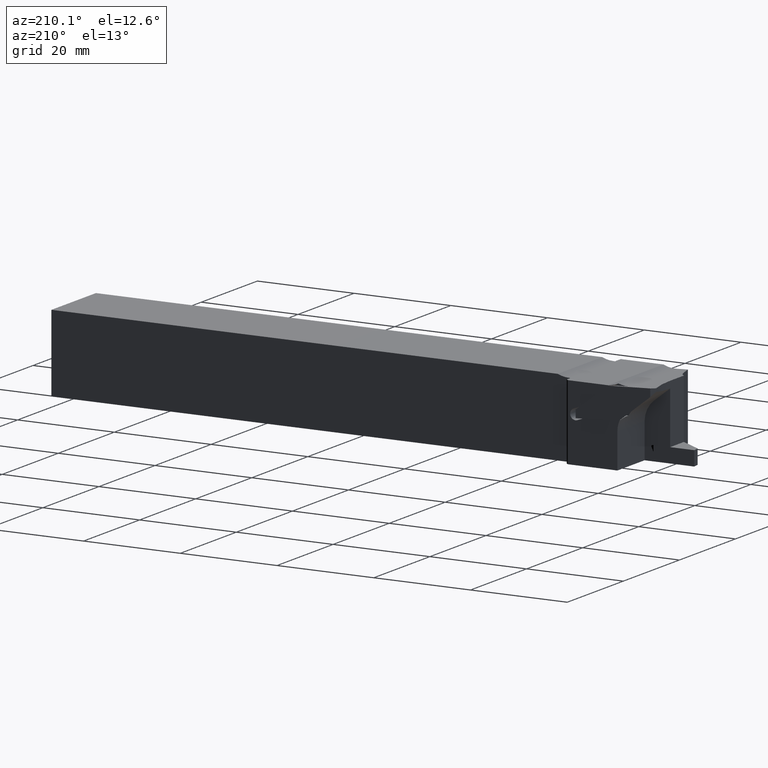
[diagram: clean part render]
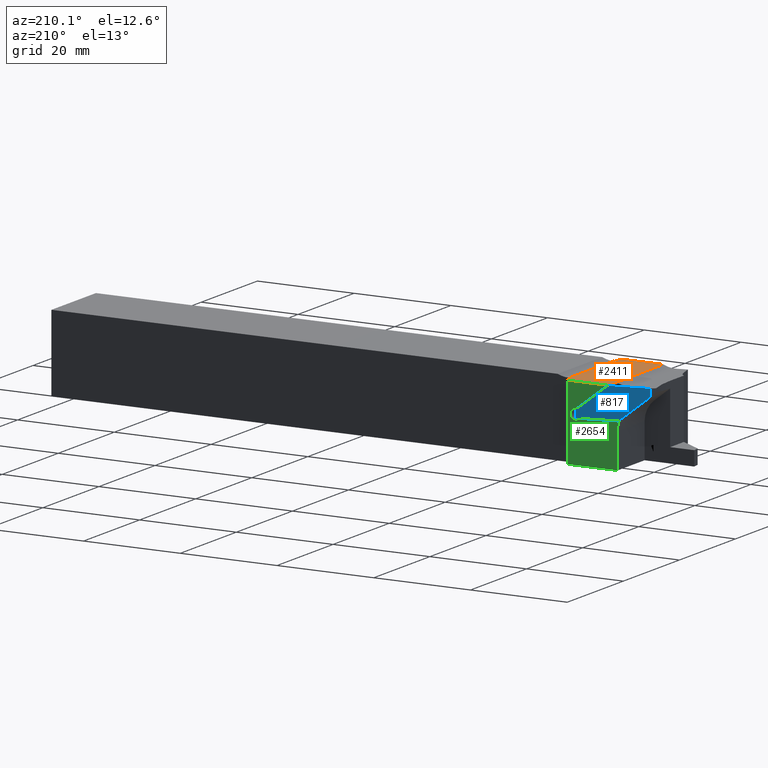
[diagram: same view with three faces highlighted in distinct colors, each labeled with its STEP entity id]
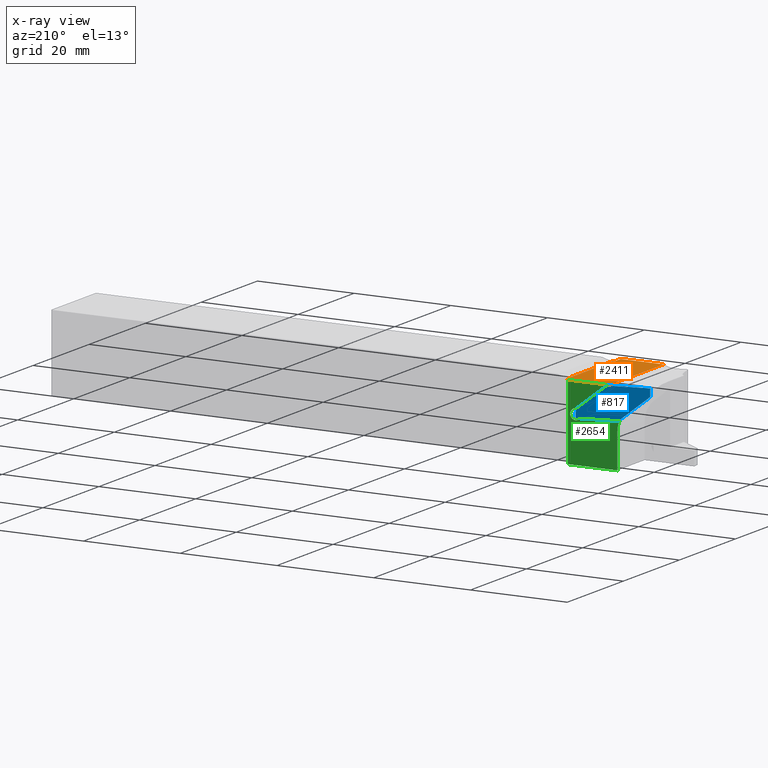
[diagram: x-ray of the same camera — body ghosted, the three highlighted faces saturated]
A machine part, auxiliary view with three faces highlighted in distinct colors.
The next image is the same camera in x-ray (body ghosted, the three faces saturated) — at least one of them is partly hidden behind the body in this view.
Their STEP definitions:

[orange] entity #2411 — the highlighted planar face has unit normal (0, -0, -1).
#4 = VERTEX_POINT ( 'NONE', #1538 ) ;
#45 = CARTESIAN_POINT ( 'NONE',  ( -116.1121971406843200, 9.700000000000013500, 7.471709989437763400 ) ) ;
#49 = CARTESIAN_POINT ( 'NONE',  ( -107.3000000000000100, 9.250000000000001800, 7.471709989437764300 ) ) ;
#77 = ORIENTED_EDGE ( 'NONE', *, *, #2792, .T. ) ;
#90 = CARTESIAN_POINT ( 'NONE',  ( -107.3000000000000100, 9.250000000000001800, 7.471709989437764300 ) ) ;
#114 = LINE ( 'NONE', #477, #788 ) ;
#150 = DIRECTION ( 'NONE',  ( -0.7071067811865474600, 0.7071067811865474600, -6.730729781240127800E-017 ) ) ;
#249 = PLANE ( 'NONE',  #278 ) ;
#278 = AXIS2_PLACEMENT_3D ( 'NONE', #3365, #2456, #596 ) ;
#394 = DIRECTION ( 'NONE',  ( 1.000000000000000000, 0.0000000000000000000, 9.518689341298283600E-017 ) ) ;
#425 = ORIENTED_EDGE ( 'NONE', *, *, #2099, .F. ) ;
#432 = VERTEX_POINT ( 'NONE', #708 ) ;
#477 = CARTESIAN_POINT ( 'NONE',  ( -107.3000000000000100, -7.937500000000000000, 7.471709989437755400 ) ) ;
#595 = CARTESIAN_POINT ( 'NONE',  ( -107.0000000000000100, -10.00000000000000200, 7.471709989437755400 ) ) ;
#596 = DIRECTION ( 'NONE',  ( -1.000000000000000000, 0.0000000000000000000, -9.518689341298283600E-017 ) ) ;
#608 = ORIENTED_EDGE ( 'NONE', *, *, #1548, .T. ) ;
#615 = LINE ( 'NONE', #1325, #2055 ) ;
#708 = CARTESIAN_POINT ( 'NONE',  ( -116.1121971406843200, -10.00000000000000200, 7.471709989437757200 ) ) ;
#726 = DIRECTION ( 'NONE',  ( -1.000000000000000000, 0.0000000000000000000, 3.807475736519313900E-016 ) ) ;
#728 = CARTESIAN_POINT ( 'NONE',  ( -107.0000000000000000, 7.937499999999985800, 7.471709989437764300 ) ) ;
#785 = ORIENTED_EDGE ( 'NONE', *, *, #2755, .T. ) ;
#788 = VECTOR ( 'NONE', #811, 1000.000000000000000 ) ;
#811 = DIRECTION ( 'NONE',  ( 0.0000000000000000000, 1.000000000000000000, 0.0000000000000000000 ) ) ;
#830 = ORIENTED_EDGE ( 'NONE', *, *, #2695, .F. ) ;
#835 = LINE ( 'NONE', #2806, #2187 ) ;
#912 = ORIENTED_EDGE ( 'NONE', *, *, #1811, .T. ) ;
#914 = VECTOR ( 'NONE', #150, 1000.000000000000100 ) ;
#939 = VERTEX_POINT ( 'NONE', #3301 ) ;
#940 = VECTOR ( 'NONE', #394, 1000.000000000000000 ) ;
#993 = LINE ( 'NONE', #595, #1542 ) ;
#1012 = CARTESIAN_POINT ( 'NONE',  ( -116.1121971406843200, 9.700000000000013500, 7.471709989437763400 ) ) ;
#1097 = VERTEX_POINT ( 'NONE', #90 ) ;
#1291 = VERTEX_POINT ( 'NONE', #3221 ) ;
#1325 = CARTESIAN_POINT ( 'NONE',  ( -107.3000000000000100, 7.937500000000000000, 7.471709989437764300 ) ) ;
#1345 = DIRECTION ( 'NONE',  ( -1.000000000000000000, 0.0000000000000000000, -9.518689341298283600E-017 ) ) ;
#1432 = DIRECTION ( 'NONE',  ( 9.856383386231856400E-017, 1.000000000000000000, -0.0000000000000000000 ) ) ;
#1491 = FACE_OUTER_BOUND ( 'NONE', #2057, .T. ) ;
#1537 = VERTEX_POINT ( 'NONE', #2195 ) ;
#1538 = CARTESIAN_POINT ( 'NONE',  ( -107.0000000000000100, -7.937500000000000000, 7.471709989437755400 ) ) ;
#1542 = VECTOR ( 'NONE', #726, 1000.000000000000000 ) ;
#1548 = EDGE_CURVE ( 'NONE', #4, #2670, #1681, .T. ) ;
#1597 = DIRECTION ( 'NONE',  ( -0.0000000000000000000, 1.000000000000000000, -9.381985148227467700E-033 ) ) ;
#1657 = EDGE_CURVE ( 'NONE', #1097, #1291, #2809, .T. ) ;
#1681 = LINE ( 'NONE', #3211, #2648 ) ;
#1689 = EDGE_CURVE ( 'NONE', #2924, #432, #993, .T. ) ;
#1811 = EDGE_CURVE ( 'NONE', #2670, #1537, #615, .T. ) ;
#1879 = CARTESIAN_POINT ( 'NONE',  ( -107.3000000000000100, -7.937500000000000000, 7.471709989437755400 ) ) ;
#2055 = VECTOR ( 'NONE', #1345, 1000.000000000000000 ) ;
#2057 = EDGE_LOOP ( 'NONE', ( #830, #425, #3149, #2405, #77, #608, #912, #785, #2803 ) ) ;
#2099 = EDGE_CURVE ( 'NONE', #432, #2150, #3222, .T. ) ;
#2139 = DIRECTION ( 'NONE',  ( 1.000000000000000000, 0.0000000000000000000, -3.807475736519313900E-016 ) ) ;
#2150 = VERTEX_POINT ( 'NONE', #1012 ) ;
#2187 = VECTOR ( 'NONE', #1597, 1000.000000000000000 ) ;
#2195 = CARTESIAN_POINT ( 'NONE',  ( -107.3000000000000100, 7.937500000000000000, 7.471709989437764300 ) ) ;
#2240 = EDGE_CURVE ( 'NONE', #2924, #939, #114, .T. ) ;
#2324 = LINE ( 'NONE', #45, #940 ) ;
#2405 = ORIENTED_EDGE ( 'NONE', *, *, #2240, .T. ) ;
#2411 = ADVANCED_FACE ( 'NONE', ( #1491 ), #249, .F. ) ;
#2456 = DIRECTION ( 'NONE',  ( 9.518689341298283600E-017, -9.381985148227467700E-033, -1.000000000000000000 ) ) ;
#2624 = VECTOR ( 'NONE', #1432, 1000.000000000000000 ) ;
#2648 = VECTOR ( 'NONE', #3413, 1000.000000000000000 ) ;
#2670 = VERTEX_POINT ( 'NONE', #728 ) ;
#2686 = CARTESIAN_POINT ( 'NONE',  ( -116.1121971406843200, -164.3558317570675100, 7.471709989437760800 ) ) ;
#2695 = EDGE_CURVE ( 'NONE', #2150, #1291, #2324, .T. ) ;
#2755 = EDGE_CURVE ( 'NONE', #1537, #1097, #835, .T. ) ;
#2792 = EDGE_CURVE ( 'NONE', #939, #4, #3384, .T. ) ;
#2803 = ORIENTED_EDGE ( 'NONE', *, *, #1657, .T. ) ;
#2806 = CARTESIAN_POINT ( 'NONE',  ( -107.3000000000000100, 10.00000000000000200, 7.471709989437764300 ) ) ;
#2809 = LINE ( 'NONE', #49, #914 ) ;
#2894 = CARTESIAN_POINT ( 'NONE',  ( -107.3000000000000100, -10.00000000000000200, 7.471709989437755400 ) ) ;
#2924 = VERTEX_POINT ( 'NONE', #2894 ) ;
#3149 = ORIENTED_EDGE ( 'NONE', *, *, #1689, .F. ) ;
#3211 = CARTESIAN_POINT ( 'NONE',  ( -107.0000000000000100, -164.3558317570675300, 7.471709989437764300 ) ) ;
#3221 = CARTESIAN_POINT ( 'NONE',  ( -107.7500000000000100, 9.700000000000004600, 7.471709989437764300 ) ) ;
#3222 = LINE ( 'NONE', #2686, #2624 ) ;
#3301 = CARTESIAN_POINT ( 'NONE',  ( -107.3000000000000100, -7.937500000000000000, 7.471709989437755400 ) ) ;
#3318 = VECTOR ( 'NONE', #2139, 1000.000000000000000 ) ;
#3365 = CARTESIAN_POINT ( 'NONE',  ( -116.1121971406843200, -164.3558317570675100, 7.471709989437763400 ) ) ;
#3384 = LINE ( 'NONE', #1879, #3318 ) ;
#3413 = DIRECTION ( 'NONE',  ( 9.856383386231856400E-017, 1.000000000000000000, -0.0000000000000000000 ) ) ;

[blue] entity #817 — the highlighted planar face has unit normal (0, 1, 0).
#33 = PLANE ( 'NONE',  #1125 ) ;
#35 = DIRECTION ( 'NONE',  ( -0.7880107536061679000, -5.175702325732085900E-014, 0.6156614753263672800 ) ) ;
#115 = CARTESIAN_POINT ( 'NONE',  ( -117.2780655205488600, 10.00000000000417400, 4.353453363864982600 ) ) ;
#149 = DIRECTION ( 'NONE',  ( -1.000000000000000000, 4.336808689968825800E-014, 0.0000000000000000000 ) ) ;
#164 = DIRECTION ( 'NONE',  ( 4.406732309896465600E-014, 1.000000000000000000, -2.813312925335332100E-014 ) ) ;
#198 = DIRECTION ( 'NONE',  ( 0.01745240620153172200, 2.879410677069491100E-014, -0.9998476951605063100 ) ) ;
#207 = VERTEX_POINT ( 'NONE', #2667 ) ;
#276 = VERTEX_POINT ( 'NONE', #1034 ) ;
#280 = CARTESIAN_POINT ( 'NONE',  ( -116.1121971412709400, 10.00000000000436800, 7.471709989900784200 ) ) ;
#335 = ORIENTED_EDGE ( 'NONE', *, *, #1540, .T. ) ;
#370 = AXIS2_PLACEMENT_3D ( 'NONE', #2638, #1122, #2864 ) ;
#372 = CARTESIAN_POINT ( 'NONE',  ( -125.0010721845520600, 10.00000000000365900, 7.937556191747977300 ) ) ;
#387 = DIRECTION ( 'NONE',  ( 4.406732309896465600E-014, 1.000000000000000000, -2.813312925335332100E-014 ) ) ;
#415 = CARTESIAN_POINT ( 'NONE',  ( -118.4736550618221400, 10.00000000000422400, 4.250664030503604500 ) ) ;
#487 = DIRECTION ( 'NONE',  ( 0.9986295347516122000, 4.518497983308720800E-014, -0.05233595629945470000 ) ) ;
#527 = DIRECTION ( 'NONE',  ( 4.676226089912808900E-014, 1.000000000000000000, 2.328934704696826600E-014 ) ) ;
#532 = AXIS2_PLACEMENT_3D ( 'NONE', #742, #1293, #1900 ) ;
#566 = FACE_BOUND ( 'NONE', #1279, .T. ) ;
#574 = AXIS2_PLACEMENT_3D ( 'NONE', #2788, #2536, #2477 ) ;
#581 = EDGE_CURVE ( 'NONE', #2955, #3041, #2172, .T. ) ;
#612 = EDGE_CURVE ( 'NONE', #2967, #1457, #2002, .T. ) ;
#676 = CARTESIAN_POINT ( 'NONE',  ( -117.9648784644904300, 10.00000000000423300, 5.337469612936629000 ) ) ;
#681 = VERTEX_POINT ( 'NONE', #3034 ) ;
#722 = ORIENTED_EDGE ( 'NONE', *, *, #612, .T. ) ;
#730 = VERTEX_POINT ( 'NONE', #676 ) ;
#742 = CARTESIAN_POINT ( 'NONE',  ( -117.2780655197945200, 10.00000000000417400, 4.353453363579943100 ) ) ;
#761 = ORIENTED_EDGE ( 'NONE', *, *, #2165, .T. ) ;
#817 = ADVANCED_FACE ( 'NONE', ( #566, #1847 ), #33, .T. ) ;
#827 = CIRCLE ( 'NONE', #2233, 1.199999999992582100 ) ;
#876 = CARTESIAN_POINT ( 'NONE',  ( -117.7868421171230600, 10.00000000000416600, 3.266647781153631900 ) ) ;
#963 = DIRECTION ( 'NONE',  ( 0.7880107536066193200, 5.175702325732443100E-014, -0.6156614753257895200 ) ) ;
#968 = CARTESIAN_POINT ( 'NONE',  ( -124.9731231747571500, 10.00000000000366300, 6.336358471395799400 ) ) ;
#994 = CARTESIAN_POINT ( 'NONE',  ( -118.4439338993206300, 10.00000000000416700, 1.235196737745981200 ) ) ;
#1033 = VERTEX_POINT ( 'NONE', #876 ) ;
#1034 = CARTESIAN_POINT ( 'NONE',  ( -109.5830078665164000, 10.00000000000487600, 2.370548256791186400 ) ) ;
#1072 = VERTEX_POINT ( 'NONE', #415 ) ;
#1122 = DIRECTION ( 'NONE',  ( 4.406732309896465600E-014, 1.000000000000000000, -2.813312925335332100E-014 ) ) ;
#1125 = AXIS2_PLACEMENT_3D ( 'NONE', #115, #527, #3309 ) ;
#1203 = AXIS2_PLACEMENT_3D ( 'NONE', #2747, #164, #149 ) ;
#1207 = VECTOR ( 'NONE', #35, 1000.000000000000100 ) ;
#1272 = CIRCLE ( 'NONE', #3366, 1.199999999992582100 ) ;
#1279 = EDGE_LOOP ( 'NONE', ( #2636, #3377, #3401, #2152, #2762, #2856 ) ) ;
#1293 = DIRECTION ( 'NONE',  ( 4.406732309896465600E-014, 1.000000000000000000, -2.813312925335332100E-014 ) ) ;
#1423 = CARTESIAN_POINT ( 'NONE',  ( -117.2780655197945200, 10.00000000000417400, 4.353453363579943100 ) ) ;
#1428 = VECTOR ( 'NONE', #487, 1000.000000000000100 ) ;
#1457 = VERTEX_POINT ( 'NONE', #280 ) ;
#1505 = VECTOR ( 'NONE', #963, 1000.000000000000100 ) ;
#1524 = VECTOR ( 'NONE', #2960, 1000.000000000000000 ) ;
#1528 = CIRCLE ( 'NONE', #370, 1.199999999992582100 ) ;
#1540 = EDGE_CURVE ( 'NONE', #681, #1638, #3368, .T. ) ;
#1589 = ORIENTED_EDGE ( 'NONE', *, *, #1636, .T. ) ;
#1636 = EDGE_CURVE ( 'NONE', #1457, #276, #3042, .T. ) ;
#1638 = VERTEX_POINT ( 'NONE', #994 ) ;
#1695 = DIRECTION ( 'NONE',  ( -1.000000000000000000, 4.336808689968825800E-014, 0.0000000000000000000 ) ) ;
#1724 = ORIENTED_EDGE ( 'NONE', *, *, #2925, .T. ) ;
#1832 = CARTESIAN_POINT ( 'NONE',  ( -118.4439338993206300, 10.00000000000416700, 1.235196737745981200 ) ) ;
#1847 = FACE_OUTER_BOUND ( 'NONE', #2402, .T. ) ;
#1900 = DIRECTION ( 'NONE',  ( -1.000000000000000000, 4.336808689968825800E-014, 0.0000000000000000000 ) ) ;
#1967 = EDGE_CURVE ( 'NONE', #1072, #730, #3251, .T. ) ;
#1970 = CARTESIAN_POINT ( 'NONE',  ( -116.0824759777743200, 10.00000000000412300, 4.456242696655476900 ) ) ;
#2002 = LINE ( 'NONE', #372, #1428 ) ;
#2029 = EDGE_CURVE ( 'NONE', #1033, #1072, #2231, .T. ) ;
#2056 = VERTEX_POINT ( 'NONE', #2514 ) ;
#2104 = CARTESIAN_POINT ( 'NONE',  ( -117.2780655197945200, 10.00000000000417400, 4.353453363579943100 ) ) ;
#2152 = ORIENTED_EDGE ( 'NONE', *, *, #2915, .F. ) ;
#2165 = EDGE_CURVE ( 'NONE', #1638, #207, #2482, .T. ) ;
#2172 = CIRCLE ( 'NONE', #1203, 1.199999999992582100 ) ;
#2231 = CIRCLE ( 'NONE', #532, 1.199999999992582100 ) ;
#2233 = AXIS2_PLACEMENT_3D ( 'NONE', #2104, #387, #2331 ) ;
#2241 = EDGE_CURVE ( 'NONE', #730, #2056, #1528, .T. ) ;
#2259 = ORIENTED_EDGE ( 'NONE', *, *, #2554, .T. ) ;
#2331 = DIRECTION ( 'NONE',  ( -1.000000000000000000, 4.336808689968825800E-014, 0.0000000000000000000 ) ) ;
#2402 = EDGE_LOOP ( 'NONE', ( #335, #761, #2259, #722, #1589, #1724 ) ) ;
#2403 = VECTOR ( 'NONE', #198, 1000.000000000000100 ) ;
#2477 = DIRECTION ( 'NONE',  ( -1.000000000000000000, 4.336808689968825800E-014, 0.0000000000000000000 ) ) ;
#2482 = LINE ( 'NONE', #1832, #1207 ) ;
#2514 = CARTESIAN_POINT ( 'NONE',  ( -116.7692889224628300, 10.00000000000418300, 5.440258946012880500 ) ) ;
#2536 = DIRECTION ( 'NONE',  ( 4.406732309896465600E-014, 1.000000000000000000, -2.813312925335332100E-014 ) ) ;
#2554 = EDGE_CURVE ( 'NONE', #207, #2967, #3430, .T. ) ;
#2636 = ORIENTED_EDGE ( 'NONE', *, *, #2029, .F. ) ;
#2638 = CARTESIAN_POINT ( 'NONE',  ( -117.2780655197945200, 10.00000000000417400, 4.353453363579943100 ) ) ;
#2667 = CARTESIAN_POINT ( 'NONE',  ( -124.9731231747571500, 10.00000000000366300, 6.336358471395799400 ) ) ;
#2668 = CARTESIAN_POINT ( 'NONE',  ( -125.0010721845520600, 10.00000000000365900, 7.937556191747977300 ) ) ;
#2675 = VECTOR ( 'NONE', #3125, 1000.000000000000100 ) ;
#2706 = CARTESIAN_POINT ( 'NONE',  ( -109.5550588567212500, 10.00000000000487600, 0.7693505364389439100 ) ) ;
#2747 = CARTESIAN_POINT ( 'NONE',  ( -117.2780655197945200, 10.00000000000417400, 4.353453363579943100 ) ) ;
#2762 = ORIENTED_EDGE ( 'NONE', *, *, #2241, .F. ) ;
#2788 = CARTESIAN_POINT ( 'NONE',  ( -117.2780655197945200, 10.00000000000417400, 4.353453363579943100 ) ) ;
#2856 = ORIENTED_EDGE ( 'NONE', *, *, #1967, .F. ) ;
#2864 = DIRECTION ( 'NONE',  ( -1.000000000000000000, 4.336808689968825800E-014, 0.0000000000000000000 ) ) ;
#2911 = CARTESIAN_POINT ( 'NONE',  ( -116.5912525750986500, 10.00000000000411600, 3.369437114223086100 ) ) ;
#2915 = EDGE_CURVE ( 'NONE', #2056, #2955, #1272, .T. ) ;
#2925 = EDGE_CURVE ( 'NONE', #276, #681, #2984, .T. ) ;
#2955 = VERTEX_POINT ( 'NONE', #1970 ) ;
#2960 = DIRECTION ( 'NONE',  ( -0.01745240620153124700, -2.879410677069494200E-014, 0.9998476951605063100 ) ) ;
#2967 = VERTEX_POINT ( 'NONE', #2668 ) ;
#2982 = CARTESIAN_POINT ( 'NONE',  ( -116.1121971412709400, 10.00000000000436800, 7.471709989900784200 ) ) ;
#2984 = LINE ( 'NONE', #3337, #2403 ) ;
#3034 = CARTESIAN_POINT ( 'NONE',  ( -109.5550588567212500, 10.00000000000487600, 0.7693505364389439100 ) ) ;
#3041 = VERTEX_POINT ( 'NONE', #2911 ) ;
#3042 = LINE ( 'NONE', #2982, #1505 ) ;
#3104 = DIRECTION ( 'NONE',  ( 4.406732309896465600E-014, 1.000000000000000000, -2.813312925335332100E-014 ) ) ;
#3125 = DIRECTION ( 'NONE',  ( -0.9986295347545749400, -4.518497983163347000E-014, 0.05233595624292399600 ) ) ;
#3251 = CIRCLE ( 'NONE', #574, 1.199999999992582100 ) ;
#3286 = EDGE_CURVE ( 'NONE', #3041, #1033, #827, .T. ) ;
#3309 = DIRECTION ( 'NONE',  ( 0.05233595647590357600, -2.570477745709900300E-014, 0.9986295347423649300 ) ) ;
#3337 = CARTESIAN_POINT ( 'NONE',  ( -109.5830078665164000, 10.00000000000487600, 2.370548256791186400 ) ) ;
#3366 = AXIS2_PLACEMENT_3D ( 'NONE', #1423, #3104, #1695 ) ;
#3368 = LINE ( 'NONE', #2706, #2675 ) ;
#3377 = ORIENTED_EDGE ( 'NONE', *, *, #3286, .F. ) ;
#3401 = ORIENTED_EDGE ( 'NONE', *, *, #581, .F. ) ;
#3430 = LINE ( 'NONE', #968, #1524 ) ;

[green] entity #2654 — the highlighted planar face has unit normal (0, 1, 0).
#32 = CARTESIAN_POINT ( 'NONE',  ( -109.6199956196990800, 9.700000000000001100, 2.325444610822859000 ) ) ;
#45 = CARTESIAN_POINT ( 'NONE',  ( -116.1121971406843200, 9.700000000000013500, 7.471709989437763400 ) ) ;
#127 = AXIS2_PLACEMENT_3D ( 'NONE', #1584, #3245, #1851 ) ;
#135 = AXIS2_PLACEMENT_3D ( 'NONE', #1827, #2097, #373 ) ;
#136 = ORIENTED_EDGE ( 'NONE', *, *, #1820, .T. ) ;
#156 = FACE_OUTER_BOUND ( 'NONE', #2492, .T. ) ;
#181 = VECTOR ( 'NONE', #1682, 1000.000000000000000 ) ;
#247 = ORIENTED_EDGE ( 'NONE', *, *, #2740, .T. ) ;
#253 = CARTESIAN_POINT ( 'NONE',  ( -116.1738410274861800, 9.700000000000013500, 7.445869826273907100 ) ) ;
#331 = EDGE_CURVE ( 'NONE', #2840, #2016, #1369, .T. ) ;
#373 = DIRECTION ( 'NONE',  ( 0.0000000000000000000, -0.0000000000000000000, 1.000000000000000000 ) ) ;
#394 = DIRECTION ( 'NONE',  ( 1.000000000000000000, 0.0000000000000000000, 9.518689341298283600E-017 ) ) ;
#401 = LINE ( 'NONE', #32, #1292 ) ;
#434 = VERTEX_POINT ( 'NONE', #1170 ) ;
#529 = DIRECTION ( 'NONE',  ( 0.9986295347545739400, 0.0000000000000000000, -0.05233595624294376500 ) ) ;
#535 = DIRECTION ( 'NONE',  ( -0.7880107536067252300, 0.0000000000000000000, 0.6156614753256540700 ) ) ;
#556 = ORIENTED_EDGE ( 'NONE', *, *, #1705, .T. ) ;
#602 = CARTESIAN_POINT ( 'NONE',  ( -109.3552306102105000, 9.700000000000001100, 1.391226772799021700 ) ) ;
#654 = DIRECTION ( 'NONE',  ( -0.7880107536067252300, 0.0000000000000000000, 0.6156614753256540700 ) ) ;
#694 = LINE ( 'NONE', #2215, #3278 ) ;
#771 = AXIS2_PLACEMENT_3D ( 'NONE', #838, #862, #854 ) ;
#821 = ORIENTED_EDGE ( 'NONE', *, *, #1619, .T. ) ;
#838 = CARTESIAN_POINT ( 'NONE',  ( -118.5012015306178600, 9.700000000000013500, 13.08443286028022500 ) ) ;
#840 = CARTESIAN_POINT ( 'NONE',  ( -132.0464001041308100, 9.700000000000001100, 2.006465904163562200 ) ) ;
#854 = DIRECTION ( 'NONE',  ( 2.866559448827249400E-013, 0.0000000000000000000, 1.000000000000000000 ) ) ;
#862 = DIRECTION ( 'NONE',  ( -0.0000000000000000000, -1.000000000000000000, -0.0000000000000000000 ) ) ;
#904 = AXIS2_PLACEMENT_3D ( 'NONE', #602, #2480, #3409 ) ;
#940 = VECTOR ( 'NONE', #394, 1000.000000000000000 ) ;
#1012 = CARTESIAN_POINT ( 'NONE',  ( -116.1121971406843200, 9.700000000000013500, 7.471709989437763400 ) ) ;
#1087 = LINE ( 'NONE', #1593, #181 ) ;
#1154 = VECTOR ( 'NONE', #1494, 1000.000000000000100 ) ;
#1170 = CARTESIAN_POINT ( 'NONE',  ( -110.4524532889385900, 9.700000000000001100, 2.975831822476851400 ) ) ;
#1172 = CIRCLE ( 'NONE', #904, 1.099999999999998300 ) ;
#1206 = VECTOR ( 'NONE', #654, 1000.000000000000100 ) ;
#1222 = CARTESIAN_POINT ( 'NONE',  ( -118.4703246736555500, 9.700000000000001100, 1.294973939473296600 ) ) ;
#1236 = ORIENTED_EDGE ( 'NONE', *, *, #2038, .T. ) ;
#1291 = VERTEX_POINT ( 'NONE', #3221 ) ;
#1292 = VECTOR ( 'NONE', #535, 1000.000000000000100 ) ;
#1295 = CARTESIAN_POINT ( 'NONE',  ( -108.9700024908251000, 9.700000000000001100, 2.421566180972265500 ) ) ;
#1347 = ORIENTED_EDGE ( 'NONE', *, *, #1577, .T. ) ;
#1368 = VECTOR ( 'NONE', #2417, 1000.000000000000100 ) ;
#1369 = LINE ( 'NONE', #1864, #1206 ) ;
#1387 = CARTESIAN_POINT ( 'NONE',  ( -116.1336102300281700, 9.700000000000001100, 7.414438082477033700 ) ) ;
#1419 = ORIENTED_EDGE ( 'NONE', *, *, #2144, .F. ) ;
#1450 = LINE ( 'NONE', #840, #1368 ) ;
#1494 = DIRECTION ( 'NONE',  ( -0.9366721892484097800, 0.0000000000000000000, 0.3502073812594349000 ) ) ;
#1502 = EDGE_CURVE ( 'NONE', #2017, #2167, #1172, .T. ) ;
#1571 = LINE ( 'NONE', #1866, #2866 ) ;
#1577 = EDGE_CURVE ( 'NONE', #434, #2840, #401, .T. ) ;
#1584 = CARTESIAN_POINT ( 'NONE',  ( -123.1225815299994700, 9.700000000000013500, -0.7946447201392570200 ) ) ;
#1593 = CARTESIAN_POINT ( 'NONE',  ( -118.0225815299994700, 9.700000000000013500, -48.72775847276538000 ) ) ;
#1619 = EDGE_CURVE ( 'NONE', #2081, #2678, #3292, .T. ) ;
#1682 = DIRECTION ( 'NONE',  ( -0.0000000000000000000, 0.0000000000000000000, 1.000000000000000000 ) ) ;
#1705 = EDGE_CURVE ( 'NONE', #2016, #2150, #2863, .T. ) ;
#1820 = EDGE_CURVE ( 'NONE', #3284, #3333, #1087, .T. ) ;
#1827 = CARTESIAN_POINT ( 'NONE',  ( 0.0000000000000000000, 9.700000000000001100, 0.0000000000000000000 ) ) ;
#1851 = DIRECTION ( 'NONE',  ( 0.0000000000000000000, 0.0000000000000000000, 1.000000000000000000 ) ) ;
#1864 = CARTESIAN_POINT ( 'NONE',  ( -109.6199956196990800, 9.700000000000001100, 2.325444610822859000 ) ) ;
#1866 = CARTESIAN_POINT ( 'NONE',  ( -109.7404587295959100, 9.700000000000001100, 0.3608873646257881900 ) ) ;
#1919 = CIRCLE ( 'NONE', #127, 5.100000000000002300 ) ;
#1926 = VECTOR ( 'NONE', #2321, 1000.000000000000000 ) ;
#1936 = CARTESIAN_POINT ( 'NONE',  ( -118.4225208105714400, 9.699999999999864300, 1.292468645171470200 ) ) ;
#2007 = LINE ( 'NONE', #3225, #1926 ) ;
#2016 = VERTEX_POINT ( 'NONE', #253 ) ;
#2017 = VERTEX_POINT ( 'NONE', #3133 ) ;
#2038 = EDGE_CURVE ( 'NONE', #3153, #3284, #694, .T. ) ;
#2045 = CARTESIAN_POINT ( 'NONE',  ( -107.7500000000000100, 9.700000000000001100, -7.937500000000000000 ) ) ;
#2081 = VERTEX_POINT ( 'NONE', #1936 ) ;
#2097 = DIRECTION ( 'NONE',  ( 0.0000000000000000000, 1.000000000000000000, 0.0000000000000000000 ) ) ;
#2101 = ORIENTED_EDGE ( 'NONE', *, *, #1502, .T. ) ;
#2107 = CARTESIAN_POINT ( 'NONE',  ( -111.2229095277143900, 9.700000000000001100, 0.9151530061322430400 ) ) ;
#2125 = CARTESIAN_POINT ( 'NONE',  ( -118.0225815299994600, 9.700000000000013500, -0.7946447201392576900 ) ) ;
#2144 = EDGE_CURVE ( 'NONE', #3153, #1291, #2007, .T. ) ;
#2150 = VERTEX_POINT ( 'NONE', #1012 ) ;
#2167 = VERTEX_POINT ( 'NONE', #1295 ) ;
#2215 = CARTESIAN_POINT ( 'NONE',  ( -125.0000000000000000, 9.700000000000001100, -7.937500000000000000 ) ) ;
#2264 = CARTESIAN_POINT ( 'NONE',  ( -132.0464001041308100, 9.700000000000001100, 2.006465904163562200 ) ) ;
#2266 = ORIENTED_EDGE ( 'NONE', *, *, #331, .T. ) ;
#2286 = EDGE_CURVE ( 'NONE', #3114, #2081, #1450, .T. ) ;
#2321 = DIRECTION ( 'NONE',  ( -0.0000000000000000000, -0.0000000000000000000, 1.000000000000000000 ) ) ;
#2324 = LINE ( 'NONE', #45, #940 ) ;
#2414 = ORIENTED_EDGE ( 'NONE', *, *, #2707, .T. ) ;
#2417 = DIRECTION ( 'NONE',  ( 0.9986295347545739400, 0.0000000000000000000, -0.05233595624294376500 ) ) ;
#2441 = LINE ( 'NONE', #2944, #1154 ) ;
#2450 = EDGE_CURVE ( 'NONE', #2167, #434, #2441, .T. ) ;
#2480 = DIRECTION ( 'NONE',  ( -0.0000000000000000000, -1.000000000000000000, -0.0000000000000000000 ) ) ;
#2492 = EDGE_LOOP ( 'NONE', ( #136, #2414, #3165, #821, #247, #2101, #3195, #1347, #2266, #556, #3058, #1419, #1236 ) ) ;
#2574 = DIRECTION ( 'NONE',  ( 0.9366721892484114500, 0.0000000000000000000, -0.3502073812594305200 ) ) ;
#2654 = ADVANCED_FACE ( 'NONE', ( #156 ), #3232, .T. ) ;
#2678 = VERTEX_POINT ( 'NONE', #2107 ) ;
#2695 = EDGE_CURVE ( 'NONE', #2150, #1291, #2324, .T. ) ;
#2707 = EDGE_CURVE ( 'NONE', #3333, #3114, #1919, .T. ) ;
#2740 = EDGE_CURVE ( 'NONE', #2678, #2017, #1571, .T. ) ;
#2840 = VERTEX_POINT ( 'NONE', #1387 ) ;
#2863 = CIRCLE ( 'NONE', #771, 6.099999999999997900 ) ;
#2866 = VECTOR ( 'NONE', #2574, 1000.000000000000000 ) ;
#2944 = CARTESIAN_POINT ( 'NONE',  ( -108.9700024908251000, 9.700000000000001100, 2.421566180972265900 ) ) ;
#3025 = DIRECTION ( 'NONE',  ( -1.000000000000000000, -0.0000000000000000000, -0.0000000000000000000 ) ) ;
#3058 = ORIENTED_EDGE ( 'NONE', *, *, #2695, .T. ) ;
#3114 = VERTEX_POINT ( 'NONE', #1222 ) ;
#3133 = CARTESIAN_POINT ( 'NONE',  ( -109.7404587295959000, 9.700000000000001100, 0.3608873646257831900 ) ) ;
#3153 = VERTEX_POINT ( 'NONE', #2045 ) ;
#3156 = VECTOR ( 'NONE', #529, 1000.000000000000100 ) ;
#3165 = ORIENTED_EDGE ( 'NONE', *, *, #2286, .T. ) ;
#3195 = ORIENTED_EDGE ( 'NONE', *, *, #2450, .T. ) ;
#3218 = CARTESIAN_POINT ( 'NONE',  ( -118.0225815299994700, 9.700000000000001100, -7.937500000000000000 ) ) ;
#3221 = CARTESIAN_POINT ( 'NONE',  ( -107.7500000000000100, 9.700000000000004600, 7.471709989437764300 ) ) ;
#3225 = CARTESIAN_POINT ( 'NONE',  ( -107.7500000000000100, 9.700000000000001100, -7.937500000000000000 ) ) ;
#3232 = PLANE ( 'NONE',  #135 ) ;
#3245 = DIRECTION ( 'NONE',  ( -0.0000000000000000000, -1.000000000000000000, -0.0000000000000000000 ) ) ;
#3278 = VECTOR ( 'NONE', #3025, 1000.000000000000000 ) ;
#3284 = VERTEX_POINT ( 'NONE', #3218 ) ;
#3292 = LINE ( 'NONE', #2264, #3156 ) ;
#3333 = VERTEX_POINT ( 'NONE', #2125 ) ;
#3409 = DIRECTION ( 'NONE',  ( 0.0000000000000000000, 0.0000000000000000000, 1.000000000000000000 ) ) ;